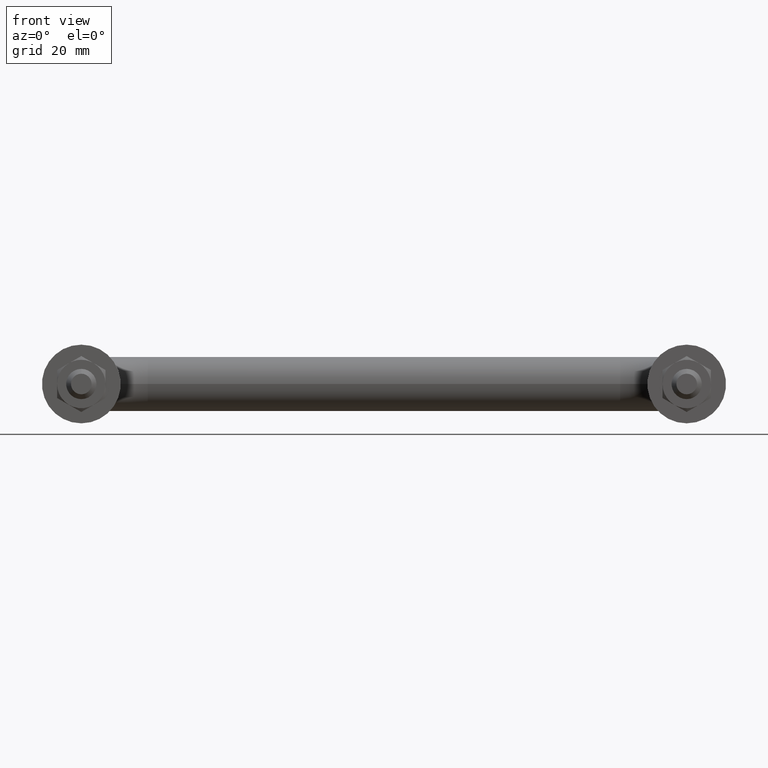
[diagram: clean part render]
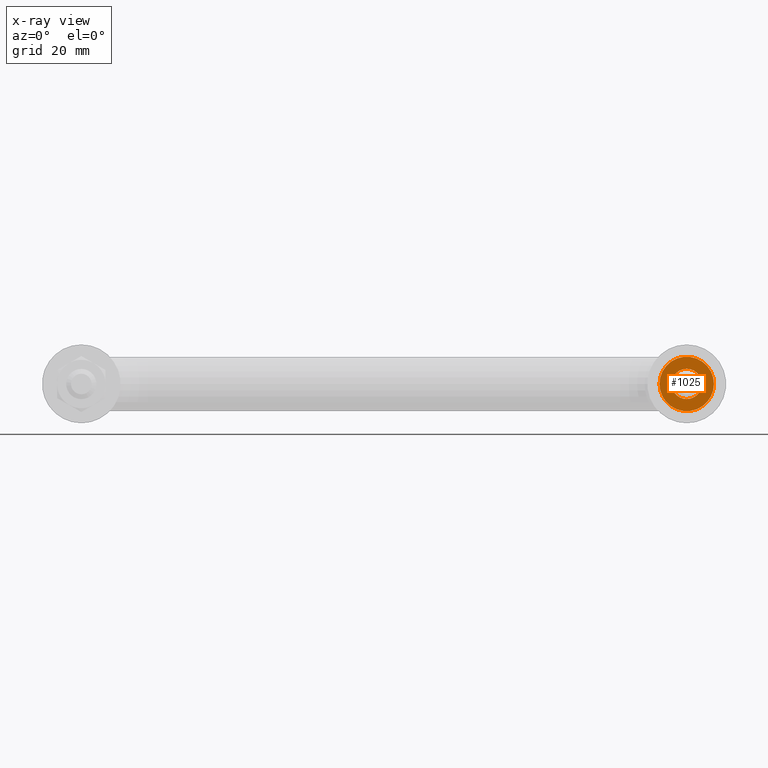
[diagram: x-ray — body ghosted, one internal face saturated and labeled with its STEP entity id]
A machine part, front view, then the same camera in x-ray: the body is ghosted and one INTERNAL B-rep face — a face not visible from any outside direction — is saturated and labeled: STEP entity #1025.
In plain terms, the highlighted planar face has unit normal (-0, -1, 0).
Its self-contained STEP definition (entity closure, byte-faithful):
#104 = EDGE_LOOP ( 'NONE', ( #1263, #1718 ) ) ;
#118 = AXIS2_PLACEMENT_3D ( 'NONE', #541, #1516, #672 ) ;
#130 = AXIS2_PLACEMENT_3D ( 'NONE', #780, #1615, #631 ) ;
#257 = CARTESIAN_POINT ( 'NONE',  ( 49.99999999999999300, -2.255140518769849200E-014, 0.0000000000000000000 ) ) ;
#282 = CIRCLE ( 'NONE', #398, 4.499999999999998200 ) ;
#361 = CARTESIAN_POINT ( 'NONE',  ( 49.99999999999999300, -2.255140518769849200E-014, -2.500000000000002200 ) ) ;
#393 = DIRECTION ( 'NONE',  ( 1.000000000000000000, -1.431847554560484400E-015, 0.0000000000000000000 ) ) ;
#398 = AXIS2_PLACEMENT_3D ( 'NONE', #625, #604, #1590 ) ;
#440 = VERTEX_POINT ( 'NONE', #1236 ) ;
#500 = CIRCLE ( 'NONE', #1538, 2.500000000000002200 ) ;
#535 = ORIENTED_EDGE ( 'NONE', *, *, #1715, .F. ) ;
#541 = CARTESIAN_POINT ( 'NONE',  ( 49.99999999999999300, -2.255140518769849200E-014, 0.0000000000000000000 ) ) ;
#548 = AXIS2_PLACEMENT_3D ( 'NONE', #1601, #1570, #1304 ) ;
#570 = CARTESIAN_POINT ( 'NONE',  ( 49.99999999999999300, -2.255140518769849200E-014, 2.500000000000002200 ) ) ;
#587 = EDGE_CURVE ( 'NONE', #1189, #440, #282, .T. ) ;
#604 = DIRECTION ( 'NONE',  ( -1.431847554560484000E-015, -1.000000000000000000, 0.0000000000000000000 ) ) ;
#611 = VERTEX_POINT ( 'NONE', #570 ) ;
#625 = CARTESIAN_POINT ( 'NONE',  ( 49.99999999999999300, -2.255140518769849200E-014, 0.0000000000000000000 ) ) ;
#631 = DIRECTION ( 'NONE',  ( 0.0000000000000000000, 0.0000000000000000000, 1.000000000000000000 ) ) ;
#672 = DIRECTION ( 'NONE',  ( 0.0000000000000000000, 0.0000000000000000000, 1.000000000000000000 ) ) ;
#769 = EDGE_LOOP ( 'NONE', ( #535, #1387 ) ) ;
#780 = CARTESIAN_POINT ( 'NONE',  ( 49.99999999999999300, -2.255140518769849200E-014, 0.0000000000000000000 ) ) ;
#788 = PLANE ( 'NONE',  #130 ) ;
#825 = CIRCLE ( 'NONE', #118, 4.499999999999998200 ) ;
#955 = FACE_BOUND ( 'NONE', #769, .T. ) ;
#1025 = ADVANCED_FACE ( 'NONE', ( #955, #1657 ), #788, .T. ) ;
#1075 = VERTEX_POINT ( 'NONE', #361 ) ;
#1189 = VERTEX_POINT ( 'NONE', #1586 ) ;
#1234 = DIRECTION ( 'NONE',  ( -1.431847554560484000E-015, -1.000000000000000000, 0.0000000000000000000 ) ) ;
#1236 = CARTESIAN_POINT ( 'NONE',  ( 54.49999999999999300, -2.899471918322066400E-014, 0.0000000000000000000 ) ) ;
#1263 = ORIENTED_EDGE ( 'NONE', *, *, #1743, .T. ) ;
#1265 = CIRCLE ( 'NONE', #548, 2.500000000000002200 ) ;
#1304 = DIRECTION ( 'NONE',  ( 1.000000000000000000, -1.431847554560484400E-015, 0.0000000000000000000 ) ) ;
#1387 = ORIENTED_EDGE ( 'NONE', *, *, #1414, .F. ) ;
#1414 = EDGE_CURVE ( 'NONE', #1075, #611, #1265, .T. ) ;
#1516 = DIRECTION ( 'NONE',  ( -1.431847554560484000E-015, -1.000000000000000000, 0.0000000000000000000 ) ) ;
#1538 = AXIS2_PLACEMENT_3D ( 'NONE', #257, #1234, #393 ) ;
#1570 = DIRECTION ( 'NONE',  ( -1.431847554560484000E-015, -1.000000000000000000, 0.0000000000000000000 ) ) ;
#1586 = CARTESIAN_POINT ( 'NONE',  ( 45.50000000000000000, -1.610809119217631700E-014, 5.510910596163105300E-016 ) ) ;
#1590 = DIRECTION ( 'NONE',  ( 0.0000000000000000000, 0.0000000000000000000, 1.000000000000000000 ) ) ;
#1601 = CARTESIAN_POINT ( 'NONE',  ( 49.99999999999999300, -2.255140518769849200E-014, 0.0000000000000000000 ) ) ;
#1615 = DIRECTION ( 'NONE',  ( -1.431847554560484000E-015, -1.000000000000000000, 0.0000000000000000000 ) ) ;
#1657 = FACE_OUTER_BOUND ( 'NONE', #104, .T. ) ;
#1715 = EDGE_CURVE ( 'NONE', #611, #1075, #500, .T. ) ;
#1718 = ORIENTED_EDGE ( 'NONE', *, *, #587, .T. ) ;
#1743 = EDGE_CURVE ( 'NONE', #440, #1189, #825, .T. ) ;